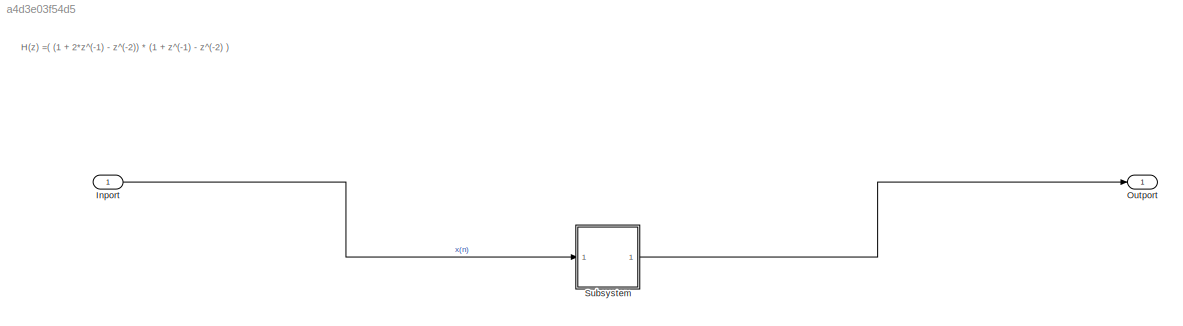
MODEL slx_a4d3e03f54d5
KIND model
CONFIG AbsTol = auto
CONFIG EnableMultiTasking = off
CONFIG FixedStep = auto
CONFIG MaxStep = auto
CONFIG MinStep = auto
CONFIG RelTol = 1e-3
CONFIG SampleTimeConstraint = Unconstrained
CONFIG Solver = VariableStepAuto
CONFIG SolverName = VariableStepAuto
CONFIG StartTime = 0.0
CONFIG StopTime = 10.0
BLOCK [Inport] Inport
  IconDisplay = Port number
BLOCK [Outport] Outport
  IconDisplay = Port number
BLOCK [ModelReference] Subsystem
  ModelNameDialog = Cascade_Fil_Realization
  ModelReferenceVersion = 1.5
  Ports = [1, 1]
ANNOTATION (root): H(z) =( (1 + 2*z^(-1) - z^(-2)) * (1 + z^(-1) - z^(-2) )
LINE Inport:1 -> Subsystem:1
LINE Subsystem:1 -> Outport:1
